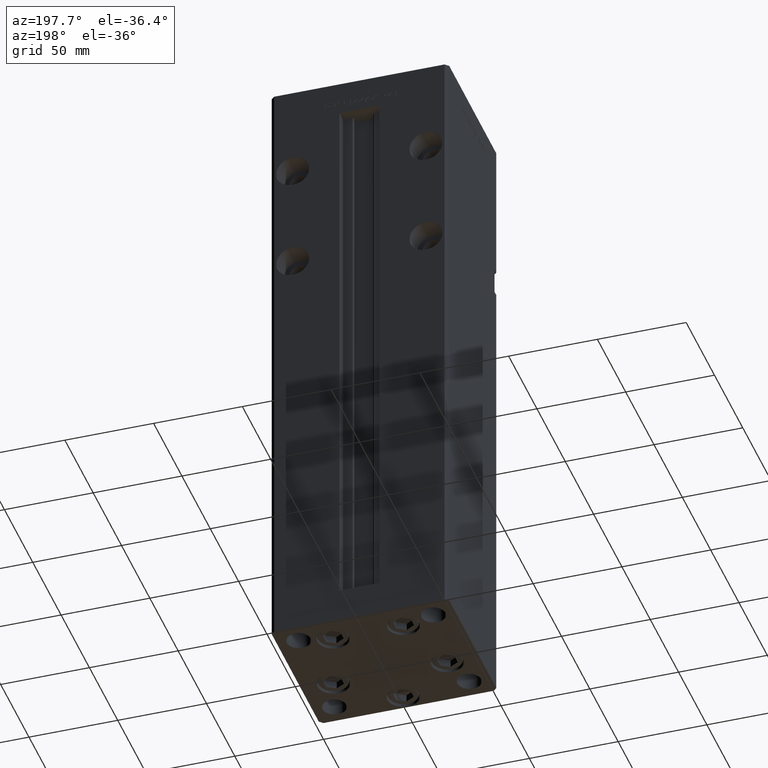
[diagram: clean part render]
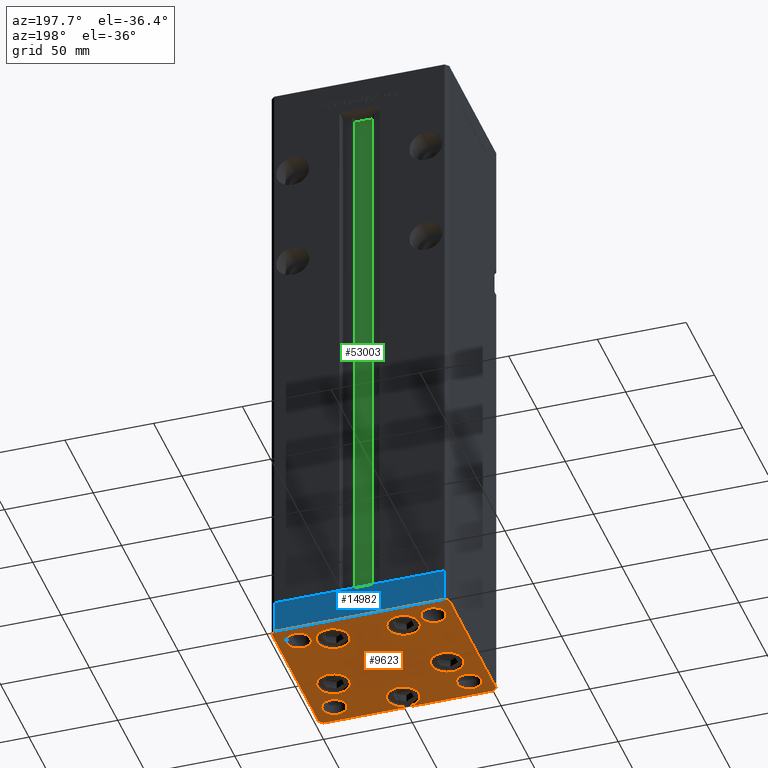
[diagram: same view with three faces highlighted in distinct colors, each labeled with its STEP entity id]
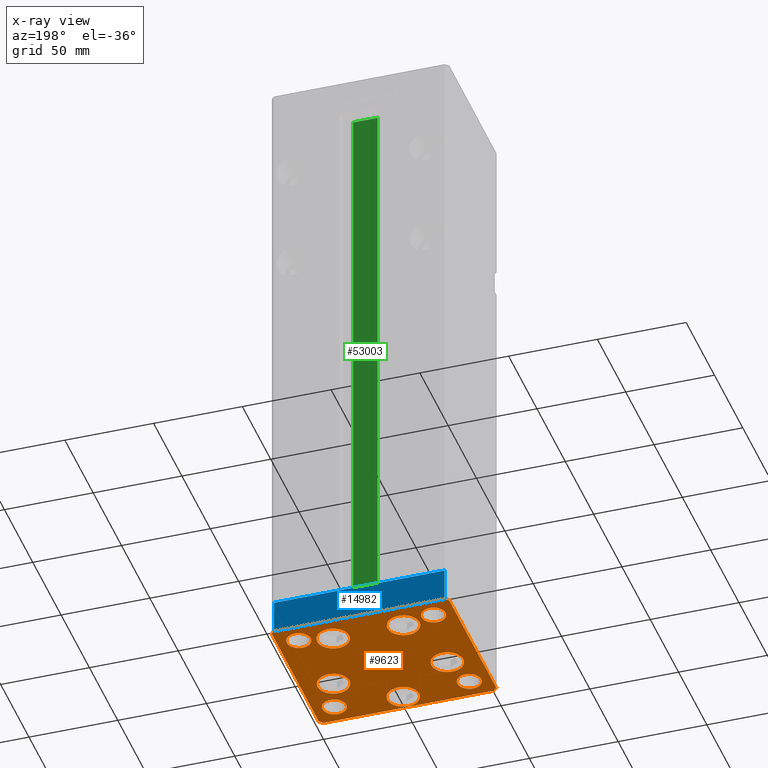
[diagram: x-ray of the same camera — body ghosted, the three highlighted faces saturated]
A machine part, auxiliary view with three faces highlighted in distinct colors.
The next image is the same camera in x-ray (body ghosted, the three faces saturated) — at least one of them is partly hidden behind the body in this view.
Their STEP definitions:

[orange] entity #9623 — the highlighted planar face has unit normal (0, 0, -1).
#1527 = CARTESIAN_POINT ( 'NONE',  ( 9.000000000000003553, -34.00000000000000000, 0.000000000000000000 ) ) ;
#1534 = EDGE_LOOP ( 'NONE', ( #4837, #44759 ) ) ;
#1621 = LINE ( 'NONE', #25526, #15239 ) ;
#1655 = EDGE_CURVE ( 'NONE', #13269, #29705, #24075, .T. ) ;
#1798 = DIRECTION ( 'NONE',  ( 0.000000000000000000, -0.000000000000000000, -1.000000000000000000 ) ) ;
#1805 = VERTEX_POINT ( 'NONE', #22903 ) ;
#1985 = DIRECTION ( 'NONE',  ( 1.000000000000000000, 0.000000000000000000, 0.000000000000000000 ) ) ;
#2013 = VERTEX_POINT ( 'NONE', #39170 ) ;
#2079 = CARTESIAN_POINT ( 'NONE',  ( -44.75000000000000000, 31.50000000000000000, 0.000000000000000000 ) ) ;
#2182 = ORIENTED_EDGE ( 'NONE', *, *, #24175, .T. ) ;
#2227 = EDGE_LOOP ( 'NONE', ( #44231, #2245 ) ) ;
#2245 = ORIENTED_EDGE ( 'NONE', *, *, #39479, .T. ) ;
#2778 = AXIS2_PLACEMENT_3D ( 'NONE', #25420, #21651, #38061 ) ;
#2953 = EDGE_CURVE ( 'NONE', #30680, #45088, #37970, .T. ) ;
#3505 = AXIS2_PLACEMENT_3D ( 'NONE', #41391, #4853, #13711 ) ;
#3519 = EDGE_CURVE ( 'NONE', #2013, #6473, #26587, .T. ) ;
#3617 = DIRECTION ( 'NONE',  ( 0.000000000000000000, -0.000000000000000000, -1.000000000000000000 ) ) ;
#3667 = VECTOR ( 'NONE', #10486, 1000.000000000000000 ) ;
#3888 = DIRECTION ( 'NONE',  ( 1.000000000000000000, 0.000000000000000000, 0.000000000000000000 ) ) ;
#4837 = ORIENTED_EDGE ( 'NONE', *, *, #7513, .F. ) ;
#4853 = DIRECTION ( 'NONE',  ( 0.000000000000000000, -0.000000000000000000, -1.000000000000000000 ) ) ;
#4909 = DIRECTION ( 'NONE',  ( 0.000000000000000000, -0.000000000000000000, -1.000000000000000000 ) ) ;
#4940 = EDGE_LOOP ( 'NONE', ( #25309, #48556 ) ) ;
#5207 = EDGE_CURVE ( 'NONE', #16707, #2013, #9862, .T. ) ;
#5322 = CARTESIAN_POINT ( 'NONE',  ( 38.00000000000000000, 31.49999999999999289, 0.000000000000000000 ) ) ;
#5329 = AXIS2_PLACEMENT_3D ( 'NONE', #47203, #47997, #34835 ) ;
#5994 = CARTESIAN_POINT ( 'NONE',  ( -50.00000000000000711, 41.49999999999995026, 0.000000000000000000 ) ) ;
#6018 = DIRECTION ( 'NONE',  ( 0.000000000000000000, -0.000000000000000000, -1.000000000000000000 ) ) ;
#6287 = DIRECTION ( 'NONE',  ( 1.000000000000000000, 0.000000000000000000, 0.000000000000000000 ) ) ;
#6306 = DIRECTION ( 'NONE',  ( 1.000000000000000000, 0.000000000000000000, 0.000000000000000000 ) ) ;
#6473 = VERTEX_POINT ( 'NONE', #38531 ) ;
#6579 = PLANE ( 'NONE',  #8036 ) ;
#6834 = CARTESIAN_POINT ( 'NONE',  ( 44.75000000000000000, 31.49999999999999289, 0.000000000000000000 ) ) ;
#6909 = VERTEX_POINT ( 'NONE', #51113 ) ;
#6985 = DIRECTION ( 'NONE',  ( 1.000000000000000000, 0.000000000000000000, 0.000000000000000000 ) ) ;
#7355 = ORIENTED_EDGE ( 'NONE', *, *, #26782, .T. ) ;
#7513 = EDGE_CURVE ( 'NONE', #48049, #24563, #40555, .T. ) ;
#7559 = CARTESIAN_POINT ( 'NONE',  ( 47.99999999999990763, 43.50000000000000000, 0.000000000000000000 ) ) ;
#7688 = ORIENTED_EDGE ( 'NONE', *, *, #9323, .T. ) ;
#8036 = AXIS2_PLACEMENT_3D ( 'NONE', #22950, #18917, #47677 ) ;
#8225 = DIRECTION ( 'NONE',  ( 0.000000000000000000, -0.000000000000000000, -1.000000000000000000 ) ) ;
#8382 = ORIENTED_EDGE ( 'NONE', *, *, #22337, .T. ) ;
#8703 = AXIS2_PLACEMENT_3D ( 'NONE', #17239, #17511, #33902 ) ;
#9136 = CIRCLE ( 'NONE', #31416, 9.000000000000001776 ) ;
#9165 = DIRECTION ( 'NONE',  ( -0.7071067811865474617, 0.7071067811865474617, 0.000000000000000000 ) ) ;
#9323 = EDGE_CURVE ( 'NONE', #32303, #50186, #38893, .T. ) ;
#9623 = ADVANCED_FACE ( 'NONE', ( #35844, #39072, #26436, #27240, #10871, #42841, #47410, #14894, #26977, #31275 ), #6579, .T. ) ;
#9714 = DIRECTION ( 'NONE',  ( 1.000000000000000000, 0.000000000000000000, 0.000000000000000000 ) ) ;
#9862 = LINE ( 'NONE', #22190, #14859 ) ;
#10061 = DIRECTION ( 'NONE',  ( 1.000000000000000000, 0.000000000000000000, 0.000000000000000000 ) ) ;
#10143 = DIRECTION ( 'NONE',  ( 1.000000000000000000, 0.000000000000000000, 0.000000000000000000 ) ) ;
#10486 = DIRECTION ( 'NONE',  ( -1.003213576468515193E-15, 1.000000000000000000, 0.000000000000000000 ) ) ;
#10590 = CARTESIAN_POINT ( 'NONE',  ( -38.00000000000000000, 31.50000000000000000, 0.000000000000000000 ) ) ;
#10756 = CARTESIAN_POINT ( 'NONE',  ( 50.00000000000000000, -41.49999999999999289, 0.000000000000000000 ) ) ;
#10871 = FACE_BOUND ( 'NONE', #4940, .T. ) ;
#11055 = DIRECTION ( 'NONE',  ( -1.000000000000000000, -3.614007241618350743E-16, 0.000000000000000000 ) ) ;
#11164 = CARTESIAN_POINT ( 'NONE',  ( 32.05550741379015278, -11.33333333333333037, 0.000000000000000000 ) ) ;
#11191 = CIRCLE ( 'NONE', #49786, 6.749999999999999112 ) ;
#11514 = EDGE_LOOP ( 'NONE', ( #7355, #41099 ) ) ;
#12019 = CIRCLE ( 'NONE', #15411, 6.749999999999999112 ) ;
#12250 = CIRCLE ( 'NONE', #20814, 6.749999999999999112 ) ;
#12324 = EDGE_LOOP ( 'NONE', ( #28712, #48467 ) ) ;
#12765 = CIRCLE ( 'NONE', #34192, 6.749999999999999112 ) ;
#13023 = ORIENTED_EDGE ( 'NONE', *, *, #44651, .T. ) ;
#13269 = VERTEX_POINT ( 'NONE', #25655 ) ;
#13445 = EDGE_CURVE ( 'NONE', #27101, #45662, #51467, .T. ) ;
#13711 = DIRECTION ( 'NONE',  ( 1.000000000000000000, 0.000000000000000000, 0.000000000000000000 ) ) ;
#14302 = AXIS2_PLACEMENT_3D ( 'NONE', #43497, #38183, #9714 ) ;
#14347 = LINE ( 'NONE', #30712, #17738 ) ;
#14507 = AXIS2_PLACEMENT_3D ( 'NONE', #26168, #43106, #6306 ) ;
#14786 = VERTEX_POINT ( 'NONE', #33792 ) ;
#14815 = AXIS2_PLACEMENT_3D ( 'NONE', #5322, #38355, #38628 ) ;
#14859 = VECTOR ( 'NONE', #47467, 1000.000000000000000 ) ;
#14894 = FACE_BOUND ( 'NONE', #16828, .T. ) ;
#15156 = CIRCLE ( 'NONE', #14302, 9.000000000000000000 ) ;
#15239 = VECTOR ( 'NONE', #9165, 1000.000000000000114 ) ;
#15411 = AXIS2_PLACEMENT_3D ( 'NONE', #46947, #1798, #10143 ) ;
#15847 = DIRECTION ( 'NONE',  ( 1.000000000000000000, 0.000000000000000000, 0.000000000000000000 ) ) ;
#16538 = AXIS2_PLACEMENT_3D ( 'NONE', #41358, #16901, #44879 ) ;
#16707 = VERTEX_POINT ( 'NONE', #29754 ) ;
#16828 = EDGE_LOOP ( 'NONE', ( #48513, #22912 ) ) ;
#16901 = DIRECTION ( 'NONE',  ( 0.000000000000000000, -0.000000000000000000, -1.000000000000000000 ) ) ;
#17239 = CARTESIAN_POINT ( 'NONE',  ( 4.163799117101000559E-15, -34.00000000000000000, 0.000000000000000000 ) ) ;
#17273 = CARTESIAN_POINT ( 'NONE',  ( 32.05550741379015278, -11.33333333333333037, 0.000000000000000000 ) ) ;
#17511 = DIRECTION ( 'NONE',  ( 0.000000000000000000, -0.000000000000000000, -1.000000000000000000 ) ) ;
#17738 = VECTOR ( 'NONE', #1985, 1000.000000000000000 ) ;
#17849 = CARTESIAN_POINT ( 'NONE',  ( -31.25000000000000000, 31.50000000000000000, 0.000000000000000000 ) ) ;
#17856 = EDGE_CURVE ( 'NONE', #29705, #13269, #9136, .T. ) ;
#17863 = VERTEX_POINT ( 'NONE', #39902 ) ;
#17885 = ORIENTED_EDGE ( 'NONE', *, *, #27188, .T. ) ;
#18175 = CARTESIAN_POINT ( 'NONE',  ( -28.82068048781373548, 27.62499999999999645, 0.000000000000000000 ) ) ;
#18198 = CARTESIAN_POINT ( 'NONE',  ( 31.25000000000000000, -31.49999999999999289, 0.000000000000000000 ) ) ;
#18917 = DIRECTION ( 'NONE',  ( -0.000000000000000000, 0.000000000000000000, 1.000000000000000000 ) ) ;
#19176 = AXIS2_PLACEMENT_3D ( 'NONE', #23632, #52665, #15847 ) ;
#19932 = DIRECTION ( 'NONE',  ( -0.7071067811865463515, -0.7071067811865487940, 0.000000000000000000 ) ) ;
#19934 = CIRCLE ( 'NONE', #5329, 8.999999999999998224 ) ;
#20437 = CARTESIAN_POINT ( 'NONE',  ( -47.99999999999999289, -43.50000000000001421, 0.000000000000000000 ) ) ;
#20814 = AXIS2_PLACEMENT_3D ( 'NONE', #29592, #4909, #46013 ) ;
#21223 = CIRCLE ( 'NONE', #28104, 8.999999999999998224 ) ;
#21405 = CARTESIAN_POINT ( 'NONE',  ( 4.163799117101000559E-15, -34.00000000000000000, 0.000000000000000000 ) ) ;
#21640 = AXIS2_PLACEMENT_3D ( 'NONE', #10590, #39868, #10061 ) ;
#21651 = DIRECTION ( 'NONE',  ( 0.000000000000000000, -0.000000000000000000, -1.000000000000000000 ) ) ;
#22011 = CARTESIAN_POINT ( 'NONE',  ( 41.05550741379015278, -11.33333333333332860, 0.000000000000000000 ) ) ;
#22190 = CARTESIAN_POINT ( 'NONE',  ( 47.99999999999999289, -43.50000000000001421, 0.000000000000000000 ) ) ;
#22337 = EDGE_CURVE ( 'NONE', #6473, #36214, #1621, .T. ) ;
#22661 = ORIENTED_EDGE ( 'NONE', *, *, #5207, .T. ) ;
#22903 = CARTESIAN_POINT ( 'NONE',  ( -50.00000000000000711, 41.49999999999995026, 0.000000000000000000 ) ) ;
#22912 = ORIENTED_EDGE ( 'NONE', *, *, #47321, .F. ) ;
#22950 = CARTESIAN_POINT ( 'NONE',  ( 0.000000000000000000, 0.000000000000000000, 0.000000000000000000 ) ) ;
#23495 = DIRECTION ( 'NONE',  ( 1.000000000000000000, 0.000000000000000000, 0.000000000000000000 ) ) ;
#23620 = EDGE_CURVE ( 'NONE', #41622, #47676, #15156, .T. ) ;
#23632 = CARTESIAN_POINT ( 'NONE',  ( 38.00000000000000000, -31.49999999999999289, 0.000000000000000000 ) ) ;
#24075 = CIRCLE ( 'NONE', #52396, 9.000000000000001776 ) ;
#24175 = EDGE_CURVE ( 'NONE', #45662, #16707, #14347, .T. ) ;
#24225 = LINE ( 'NONE', #36599, #27581 ) ;
#24285 = DIRECTION ( 'NONE',  ( 0.000000000000000000, -0.000000000000000000, -1.000000000000000000 ) ) ;
#24563 = VERTEX_POINT ( 'NONE', #48397 ) ;
#25309 = ORIENTED_EDGE ( 'NONE', *, *, #35978, .T. ) ;
#25420 = CARTESIAN_POINT ( 'NONE',  ( -32.05550741379015278, -11.33333333333333925, 0.000000000000000000 ) ) ;
#25427 = CARTESIAN_POINT ( 'NONE',  ( 28.82068048781372838, 27.62500000000000000, 0.000000000000000000 ) ) ;
#25526 = CARTESIAN_POINT ( 'NONE',  ( 49.99999999999992184, 41.49999999999998579, 0.000000000000000000 ) ) ;
#25655 = CARTESIAN_POINT ( 'NONE',  ( 23.05550741379014923, -11.33333333333333037, 0.000000000000000000 ) ) ;
#26168 = CARTESIAN_POINT ( 'NONE',  ( -38.00000000000000000, 31.50000000000000000, 0.000000000000000000 ) ) ;
#26386 = LINE ( 'NONE', #5994, #43855 ) ;
#26436 = FACE_BOUND ( 'NONE', #29434, .T. ) ;
#26587 = LINE ( 'NONE', #10756, #3667 ) ;
#26782 = EDGE_CURVE ( 'NONE', #14786, #52201, #21223, .T. ) ;
#26977 = FACE_OUTER_BOUND ( 'NONE', #33044, .T. ) ;
#27101 = VERTEX_POINT ( 'NONE', #31189 ) ;
#27188 = EDGE_CURVE ( 'NONE', #36214, #52829, #39256, .T. ) ;
#27240 = FACE_BOUND ( 'NONE', #41259, .T. ) ;
#27581 = VECTOR ( 'NONE', #19932, 1000.000000000000000 ) ;
#28104 = AXIS2_PLACEMENT_3D ( 'NONE', #38253, #6018, #6287 ) ;
#28221 = VERTEX_POINT ( 'NONE', #39066 ) ;
#28712 = ORIENTED_EDGE ( 'NONE', *, *, #41457, .T. ) ;
#29434 = EDGE_LOOP ( 'NONE', ( #47731, #43820 ) ) ;
#29592 = CARTESIAN_POINT ( 'NONE',  ( -37.99999999999999289, -31.50000000000000000, 0.000000000000000000 ) ) ;
#29705 = VERTEX_POINT ( 'NONE', #22011 ) ;
#29754 = CARTESIAN_POINT ( 'NONE',  ( 47.99999999999999289, -43.50000000000001421, 0.000000000000000000 ) ) ;
#29845 = EDGE_CURVE ( 'NONE', #24563, #48049, #12765, .T. ) ;
#30141 = EDGE_LOOP ( 'NONE', ( #46540, #52068 ) ) ;
#30680 = VERTEX_POINT ( 'NONE', #43227 ) ;
#30712 = CARTESIAN_POINT ( 'NONE',  ( -47.99999999999999289, -43.50000000000001421, 0.000000000000000000 ) ) ;
#31189 = CARTESIAN_POINT ( 'NONE',  ( -50.00000000000000000, -41.50000000000000000, 0.000000000000000000 ) ) ;
#31275 = FACE_BOUND ( 'NONE', #30141, .T. ) ;
#31416 = AXIS2_PLACEMENT_3D ( 'NONE', #11164, #3617, #23495 ) ;
#31790 = CIRCLE ( 'NONE', #3505, 9.000000000000000000 ) ;
#32301 = EDGE_CURVE ( 'NONE', #17863, #28221, #12019, .T. ) ;
#32303 = VERTEX_POINT ( 'NONE', #1527 ) ;
#32529 = CIRCLE ( 'NONE', #14507, 6.749999999999999112 ) ;
#33044 = EDGE_LOOP ( 'NONE', ( #49692, #2182, #22661, #53072, #8382, #17885, #40639, #51479 ) ) ;
#33275 = VECTOR ( 'NONE', #11055, 1000.000000000000000 ) ;
#33792 = CARTESIAN_POINT ( 'NONE',  ( 10.82068048781373193, 27.62500000000000000, 0.000000000000000000 ) ) ;
#33902 = DIRECTION ( 'NONE',  ( 1.000000000000000000, 0.000000000000000000, 0.000000000000000000 ) ) ;
#34192 = AXIS2_PLACEMENT_3D ( 'NONE', #43797, #36519, #6985 ) ;
#34835 = DIRECTION ( 'NONE',  ( 1.000000000000000000, 0.000000000000000000, 0.000000000000000000 ) ) ;
#35488 = CIRCLE ( 'NONE', #19176, 6.749999999999999112 ) ;
#35844 = FACE_BOUND ( 'NONE', #12324, .T. ) ;
#35910 = DIRECTION ( 'NONE',  ( 0.000000000000000000, -0.000000000000000000, -1.000000000000000000 ) ) ;
#35978 = EDGE_CURVE ( 'NONE', #45088, #30680, #43989, .T. ) ;
#36214 = VERTEX_POINT ( 'NONE', #37403 ) ;
#36519 = DIRECTION ( 'NONE',  ( -0.000000000000000000, 0.000000000000000000, 1.000000000000000000 ) ) ;
#36599 = CARTESIAN_POINT ( 'NONE',  ( -48.00000000000000711, 43.49999999999996447, 0.000000000000000000 ) ) ;
#37328 = EDGE_CURVE ( 'NONE', #37990, #37774, #32529, .T. ) ;
#37403 = CARTESIAN_POINT ( 'NONE',  ( 47.99999999999990763, 43.50000000000000000, 0.000000000000000000 ) ) ;
#37774 = VERTEX_POINT ( 'NONE', #2079 ) ;
#37970 = CIRCLE ( 'NONE', #16538, 9.000000000000001776 ) ;
#37990 = VERTEX_POINT ( 'NONE', #17849 ) ;
#38061 = DIRECTION ( 'NONE',  ( 1.000000000000000000, 0.000000000000000000, 0.000000000000000000 ) ) ;
#38183 = DIRECTION ( 'NONE',  ( 0.000000000000000000, -0.000000000000000000, -1.000000000000000000 ) ) ;
#38253 = CARTESIAN_POINT ( 'NONE',  ( 19.82068048781373193, 27.62500000000000000, 0.000000000000000000 ) ) ;
#38355 = DIRECTION ( 'NONE',  ( -0.000000000000000000, 0.000000000000000000, 1.000000000000000000 ) ) ;
#38531 = CARTESIAN_POINT ( 'NONE',  ( 49.99999999999992184, 41.49999999999998579, 0.000000000000000000 ) ) ;
#38628 = DIRECTION ( 'NONE',  ( 1.000000000000000000, 0.000000000000000000, 0.000000000000000000 ) ) ;
#38754 = DIRECTION ( 'NONE',  ( 8.360113137237628665E-17, -1.000000000000000000, 0.000000000000000000 ) ) ;
#38827 = CARTESIAN_POINT ( 'NONE',  ( -50.00000000000000000, -41.50000000000000000, 0.000000000000000000 ) ) ;
#38893 = CIRCLE ( 'NONE', #51806, 9.000000000000000000 ) ;
#39066 = CARTESIAN_POINT ( 'NONE',  ( -44.74999999999999289, -31.50000000000000000, 0.000000000000000000 ) ) ;
#39072 = FACE_BOUND ( 'NONE', #11514, .T. ) ;
#39170 = CARTESIAN_POINT ( 'NONE',  ( 50.00000000000000000, -41.49999999999999289, 0.000000000000000000 ) ) ;
#39256 = LINE ( 'NONE', #7559, #33275 ) ;
#39479 = EDGE_CURVE ( 'NONE', #42573, #6909, #11191, .T. ) ;
#39704 = CIRCLE ( 'NONE', #21640, 6.749999999999999112 ) ;
#39868 = DIRECTION ( 'NONE',  ( -0.000000000000000000, 0.000000000000000000, 1.000000000000000000 ) ) ;
#39902 = CARTESIAN_POINT ( 'NONE',  ( -31.24999999999999289, -31.50000000000000000, 0.000000000000000000 ) ) ;
#40555 = CIRCLE ( 'NONE', #14815, 6.749999999999999112 ) ;
#40639 = ORIENTED_EDGE ( 'NONE', *, *, #43246, .T. ) ;
#40737 = DIRECTION ( 'NONE',  ( 1.000000000000000000, 0.000000000000000000, 0.000000000000000000 ) ) ;
#41099 = ORIENTED_EDGE ( 'NONE', *, *, #46920, .T. ) ;
#41142 = CARTESIAN_POINT ( 'NONE',  ( -8.999999999999996447, -34.00000000000000000, 0.000000000000000000 ) ) ;
#41259 = EDGE_LOOP ( 'NONE', ( #13023, #7688 ) ) ;
#41358 = CARTESIAN_POINT ( 'NONE',  ( -32.05550741379015278, -11.33333333333333925, 0.000000000000000000 ) ) ;
#41391 = CARTESIAN_POINT ( 'NONE',  ( -19.82068048781373903, 27.62499999999999645, 0.000000000000000000 ) ) ;
#41457 = EDGE_CURVE ( 'NONE', #47676, #41622, #31790, .T. ) ;
#41622 = VERTEX_POINT ( 'NONE', #45120 ) ;
#42244 = EDGE_CURVE ( 'NONE', #1805, #27101, #26386, .T. ) ;
#42573 = VERTEX_POINT ( 'NONE', #18198 ) ;
#42708 = CARTESIAN_POINT ( 'NONE',  ( -48.00000000000000711, 43.49999999999996447, 0.000000000000000000 ) ) ;
#42841 = FACE_BOUND ( 'NONE', #1534, .T. ) ;
#43106 = DIRECTION ( 'NONE',  ( -0.000000000000000000, 0.000000000000000000, 1.000000000000000000 ) ) ;
#43227 = CARTESIAN_POINT ( 'NONE',  ( -23.05550741379014923, -11.33333333333333748, 0.000000000000000000 ) ) ;
#43246 = EDGE_CURVE ( 'NONE', #52829, #1805, #24225, .T. ) ;
#43497 = CARTESIAN_POINT ( 'NONE',  ( -19.82068048781373903, 27.62499999999999645, 0.000000000000000000 ) ) ;
#43515 = CARTESIAN_POINT ( 'NONE',  ( -41.05550741379015278, -11.33333333333333925, 0.000000000000000000 ) ) ;
#43797 = CARTESIAN_POINT ( 'NONE',  ( 38.00000000000000000, 31.49999999999999289, 0.000000000000000000 ) ) ;
#43820 = ORIENTED_EDGE ( 'NONE', *, *, #17856, .T. ) ;
#43855 = VECTOR ( 'NONE', #38754, 1000.000000000000000 ) ;
#43989 = CIRCLE ( 'NONE', #2778, 9.000000000000001776 ) ;
#44231 = ORIENTED_EDGE ( 'NONE', *, *, #50567, .T. ) ;
#44651 = EDGE_CURVE ( 'NONE', #50186, #32303, #49902, .T. ) ;
#44759 = ORIENTED_EDGE ( 'NONE', *, *, #29845, .F. ) ;
#44879 = DIRECTION ( 'NONE',  ( 1.000000000000000000, 0.000000000000000000, 0.000000000000000000 ) ) ;
#45088 = VERTEX_POINT ( 'NONE', #43515 ) ;
#45120 = CARTESIAN_POINT ( 'NONE',  ( -10.82068048781373903, 27.62499999999999645, 0.000000000000000000 ) ) ;
#45662 = VERTEX_POINT ( 'NONE', #20437 ) ;
#46013 = DIRECTION ( 'NONE',  ( 1.000000000000000000, 0.000000000000000000, 0.000000000000000000 ) ) ;
#46540 = ORIENTED_EDGE ( 'NONE', *, *, #32301, .T. ) ;
#46902 = DIRECTION ( 'NONE',  ( 0.7071067811865474617, -0.7071067811865474617, 0.000000000000000000 ) ) ;
#46920 = EDGE_CURVE ( 'NONE', #52201, #14786, #19934, .T. ) ;
#46947 = CARTESIAN_POINT ( 'NONE',  ( -37.99999999999999289, -31.50000000000000000, 0.000000000000000000 ) ) ;
#47203 = CARTESIAN_POINT ( 'NONE',  ( 19.82068048781373193, 27.62500000000000000, 0.000000000000000000 ) ) ;
#47321 = EDGE_CURVE ( 'NONE', #37774, #37990, #39704, .T. ) ;
#47410 = FACE_BOUND ( 'NONE', #2227, .T. ) ;
#47467 = DIRECTION ( 'NONE',  ( 0.7071067811865463515, 0.7071067811865487940, 0.000000000000000000 ) ) ;
#47481 = DIRECTION ( 'NONE',  ( 1.000000000000000000, 0.000000000000000000, 0.000000000000000000 ) ) ;
#47676 = VERTEX_POINT ( 'NONE', #18175 ) ;
#47677 = DIRECTION ( 'NONE',  ( 1.000000000000000000, 0.000000000000000000, 0.000000000000000000 ) ) ;
#47731 = ORIENTED_EDGE ( 'NONE', *, *, #1655, .T. ) ;
#47997 = DIRECTION ( 'NONE',  ( 0.000000000000000000, -0.000000000000000000, -1.000000000000000000 ) ) ;
#48049 = VERTEX_POINT ( 'NONE', #6834 ) ;
#48154 = EDGE_CURVE ( 'NONE', #28221, #17863, #12250, .T. ) ;
#48397 = CARTESIAN_POINT ( 'NONE',  ( 31.25000000000000000, 31.49999999999999289, 0.000000000000000000 ) ) ;
#48467 = ORIENTED_EDGE ( 'NONE', *, *, #23620, .T. ) ;
#48513 = ORIENTED_EDGE ( 'NONE', *, *, #37328, .F. ) ;
#48556 = ORIENTED_EDGE ( 'NONE', *, *, #2953, .T. ) ;
#49585 = CARTESIAN_POINT ( 'NONE',  ( 38.00000000000000000, -31.49999999999999289, 0.000000000000000000 ) ) ;
#49692 = ORIENTED_EDGE ( 'NONE', *, *, #13445, .T. ) ;
#49786 = AXIS2_PLACEMENT_3D ( 'NONE', #49585, #8225, #40737 ) ;
#49902 = CIRCLE ( 'NONE', #8703, 9.000000000000000000 ) ;
#50186 = VERTEX_POINT ( 'NONE', #41142 ) ;
#50567 = EDGE_CURVE ( 'NONE', #6909, #42573, #35488, .T. ) ;
#51057 = VECTOR ( 'NONE', #46902, 1000.000000000000114 ) ;
#51113 = CARTESIAN_POINT ( 'NONE',  ( 44.75000000000000000, -31.49999999999999289, 0.000000000000000000 ) ) ;
#51467 = LINE ( 'NONE', #38827, #51057 ) ;
#51479 = ORIENTED_EDGE ( 'NONE', *, *, #42244, .T. ) ;
#51806 = AXIS2_PLACEMENT_3D ( 'NONE', #21405, #35910, #47481 ) ;
#52068 = ORIENTED_EDGE ( 'NONE', *, *, #48154, .T. ) ;
#52201 = VERTEX_POINT ( 'NONE', #25427 ) ;
#52396 = AXIS2_PLACEMENT_3D ( 'NONE', #17273, #24285, #3888 ) ;
#52665 = DIRECTION ( 'NONE',  ( 0.000000000000000000, -0.000000000000000000, -1.000000000000000000 ) ) ;
#52829 = VERTEX_POINT ( 'NONE', #42708 ) ;
#53072 = ORIENTED_EDGE ( 'NONE', *, *, #3519, .T. ) ;

[blue] entity #14982 — the highlighted planar face has unit normal (-0, 1, 0).
#1136 = DIRECTION ( 'NONE',  ( 0.000000000000000000, 0.000000000000000000, 1.000000000000000000 ) ) ;
#1267 = LINE ( 'NONE', #38342, #44097 ) ;
#3163 = DIRECTION ( 'NONE',  ( 0.000000000000000000, 0.000000000000000000, 1.000000000000000000 ) ) ;
#3448 = CARTESIAN_POINT ( 'NONE',  ( 47.99999999999990763, 43.50000000000000000, -19.00000000000000000 ) ) ;
#6501 = AXIS2_PLACEMENT_3D ( 'NONE', #36712, #40216, #40749 ) ;
#7559 = CARTESIAN_POINT ( 'NONE',  ( 47.99999999999990763, 43.50000000000000000, 0.000000000000000000 ) ) ;
#8073 = ORIENTED_EDGE ( 'NONE', *, *, #42671, .F. ) ;
#10151 = DIRECTION ( 'NONE',  ( -1.000000000000000000, -3.614007241618350743E-16, 0.000000000000000000 ) ) ;
#10165 = EDGE_CURVE ( 'NONE', #35874, #41858, #1267, .T. ) ;
#10758 = VECTOR ( 'NONE', #1136, 1000.000000000000000 ) ;
#11055 = DIRECTION ( 'NONE',  ( -1.000000000000000000, -3.614007241618350743E-16, 0.000000000000000000 ) ) ;
#12792 = CARTESIAN_POINT ( 'NONE',  ( -48.00000000000000711, 43.49999999999996447, -19.00000000000000000 ) ) ;
#14982 = ADVANCED_FACE ( 'NONE', ( #37235 ), #28630, .T. ) ;
#15264 = ORIENTED_EDGE ( 'NONE', *, *, #15273, .T. ) ;
#15273 = EDGE_CURVE ( 'NONE', #41858, #52829, #29871, .T. ) ;
#16383 = VECTOR ( 'NONE', #3163, 1000.000000000000000 ) ;
#19552 = EDGE_LOOP ( 'NONE', ( #38509, #8073, #26358, #15264 ) ) ;
#21288 = CARTESIAN_POINT ( 'NONE',  ( -48.00000000000000711, 43.49999999999996447, -19.00000000000000000 ) ) ;
#26358 = ORIENTED_EDGE ( 'NONE', *, *, #10165, .T. ) ;
#27188 = EDGE_CURVE ( 'NONE', #36214, #52829, #39256, .T. ) ;
#28630 = PLANE ( 'NONE',  #6501 ) ;
#29871 = LINE ( 'NONE', #21288, #10758 ) ;
#33275 = VECTOR ( 'NONE', #11055, 1000.000000000000000 ) ;
#35874 = VERTEX_POINT ( 'NONE', #3448 ) ;
#36198 = CARTESIAN_POINT ( 'NONE',  ( 47.99999999999990763, 43.50000000000000000, -19.00000000000000000 ) ) ;
#36214 = VERTEX_POINT ( 'NONE', #37403 ) ;
#36712 = CARTESIAN_POINT ( 'NONE',  ( 47.99999999999990763, 43.50000000000000000, -19.00000000000000000 ) ) ;
#37235 = FACE_OUTER_BOUND ( 'NONE', #19552, .T. ) ;
#37403 = CARTESIAN_POINT ( 'NONE',  ( 47.99999999999990763, 43.50000000000000000, 0.000000000000000000 ) ) ;
#38342 = CARTESIAN_POINT ( 'NONE',  ( 47.99999999999990763, 43.50000000000000000, -19.00000000000000000 ) ) ;
#38509 = ORIENTED_EDGE ( 'NONE', *, *, #27188, .F. ) ;
#39256 = LINE ( 'NONE', #7559, #33275 ) ;
#40216 = DIRECTION ( 'NONE',  ( -3.614007241618350743E-16, 1.000000000000000000, 0.000000000000000000 ) ) ;
#40749 = DIRECTION ( 'NONE',  ( -1.000000000000000000, -3.614007241618350743E-16, 0.000000000000000000 ) ) ;
#41858 = VERTEX_POINT ( 'NONE', #12792 ) ;
#42671 = EDGE_CURVE ( 'NONE', #35874, #36214, #48297, .T. ) ;
#42708 = CARTESIAN_POINT ( 'NONE',  ( -48.00000000000000711, 43.49999999999996447, 0.000000000000000000 ) ) ;
#44097 = VECTOR ( 'NONE', #10151, 1000.000000000000000 ) ;
#48297 = LINE ( 'NONE', #36198, #16383 ) ;
#52829 = VERTEX_POINT ( 'NONE', #42708 ) ;

[green] entity #53003 — the highlighted planar face has unit normal (0, -1, 0).
#56 = ORIENTED_EDGE ( 'NONE', *, *, #46926, .F. ) ;
#1397 = CARTESIAN_POINT ( 'NONE',  ( -6.876153656360465050, 32.99999999999986500, 318.5000000000000000 ) ) ;
#4016 = LINE ( 'NONE', #33006, #12963 ) ;
#6291 = CARTESIAN_POINT ( 'NONE',  ( -6.876153656360465050, 32.99999999999986500, 0.000000000000000000 ) ) ;
#10320 = LINE ( 'NONE', #6291, #28889 ) ;
#10827 = CARTESIAN_POINT ( 'NONE',  ( 6.876153656360465050, 32.99999999999986500, 0.000000000000000000 ) ) ;
#10868 = VERTEX_POINT ( 'NONE', #1397 ) ;
#12312 = VERTEX_POINT ( 'NONE', #49466 ) ;
#12963 = VECTOR ( 'NONE', #37046, 1000.000000000000000 ) ;
#15119 = VECTOR ( 'NONE', #47637, 1000.000000000000000 ) ;
#17390 = PLANE ( 'NONE',  #37158 ) ;
#18162 = EDGE_CURVE ( 'NONE', #31379, #44695, #23169, .T. ) ;
#22057 = CARTESIAN_POINT ( 'NONE',  ( 6.876153656360465050, 32.99999999999986500, 0.000000000000000000 ) ) ;
#23169 = LINE ( 'NONE', #10827, #15119 ) ;
#24185 = EDGE_CURVE ( 'NONE', #31379, #10868, #10320, .T. ) ;
#25179 = DIRECTION ( 'NONE',  ( 0.000000000000000000, 0.000000000000000000, -1.000000000000000000 ) ) ;
#26494 = DIRECTION ( 'NONE',  ( -0.000000000000000000, -0.000000000000000000, 1.000000000000000000 ) ) ;
#27037 = LINE ( 'NONE', #31331, #42215 ) ;
#27421 = CARTESIAN_POINT ( 'NONE',  ( -6.876153656360465050, 32.99999999999986500, 0.000000000000000000 ) ) ;
#28889 = VECTOR ( 'NONE', #42554, 1000.000000000000000 ) ;
#31331 = CARTESIAN_POINT ( 'NONE',  ( 6.876153656360465050, 32.99999999999986500, 0.000000000000000000 ) ) ;
#31379 = VERTEX_POINT ( 'NONE', #27421 ) ;
#32990 = CARTESIAN_POINT ( 'NONE',  ( 6.876153656360465050, 32.99999999999986500, 0.000000000000000000 ) ) ;
#33006 = CARTESIAN_POINT ( 'NONE',  ( 0.000000000000000000, 32.99999999999986500, 318.5000000000000000 ) ) ;
#36330 = ORIENTED_EDGE ( 'NONE', *, *, #42371, .F. ) ;
#36488 = ORIENTED_EDGE ( 'NONE', *, *, #24185, .T. ) ;
#37046 = DIRECTION ( 'NONE',  ( -1.000000000000000000, 0.000000000000000000, 0.000000000000000000 ) ) ;
#37158 = AXIS2_PLACEMENT_3D ( 'NONE', #32990, #45366, #25179 ) ;
#41068 = FACE_OUTER_BOUND ( 'NONE', #41419, .T. ) ;
#41419 = EDGE_LOOP ( 'NONE', ( #56, #43163, #36488, #36330 ) ) ;
#42215 = VECTOR ( 'NONE', #26494, 1000.000000000000000 ) ;
#42371 = EDGE_CURVE ( 'NONE', #12312, #10868, #4016, .T. ) ;
#42554 = DIRECTION ( 'NONE',  ( -0.000000000000000000, -0.000000000000000000, 1.000000000000000000 ) ) ;
#43163 = ORIENTED_EDGE ( 'NONE', *, *, #18162, .F. ) ;
#44695 = VERTEX_POINT ( 'NONE', #22057 ) ;
#45366 = DIRECTION ( 'NONE',  ( 0.000000000000000000, -1.000000000000000000, -0.000000000000000000 ) ) ;
#46926 = EDGE_CURVE ( 'NONE', #44695, #12312, #27037, .T. ) ;
#47637 = DIRECTION ( 'NONE',  ( 1.000000000000000000, -0.000000000000000000, -0.000000000000000000 ) ) ;
#49466 = CARTESIAN_POINT ( 'NONE',  ( 6.876153656360465050, 32.99999999999986500, 318.5000000000000000 ) ) ;
#53003 = ADVANCED_FACE ( 'NONE', ( #41068 ), #17390, .F. ) ;